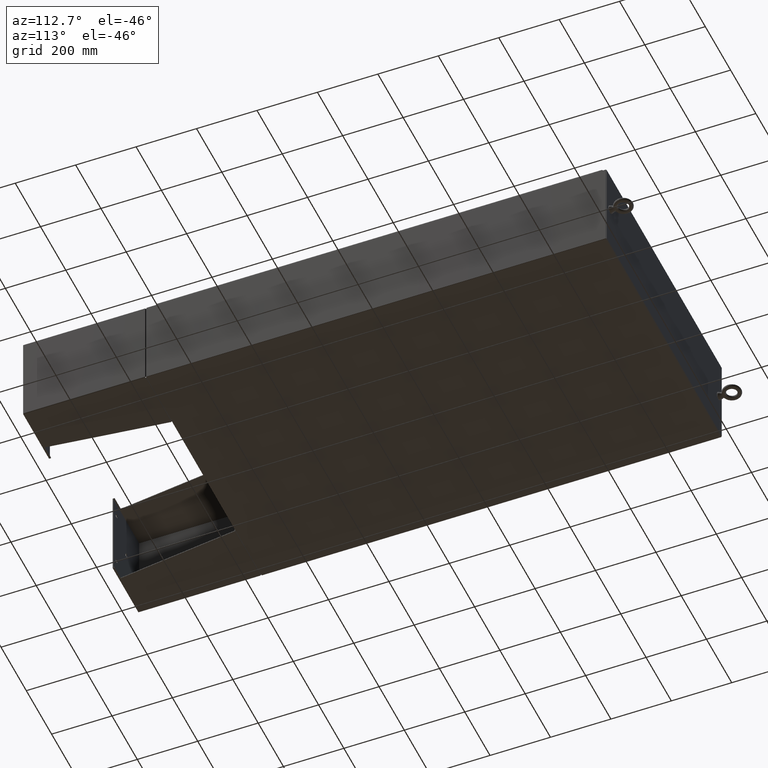
[diagram: clean part render]
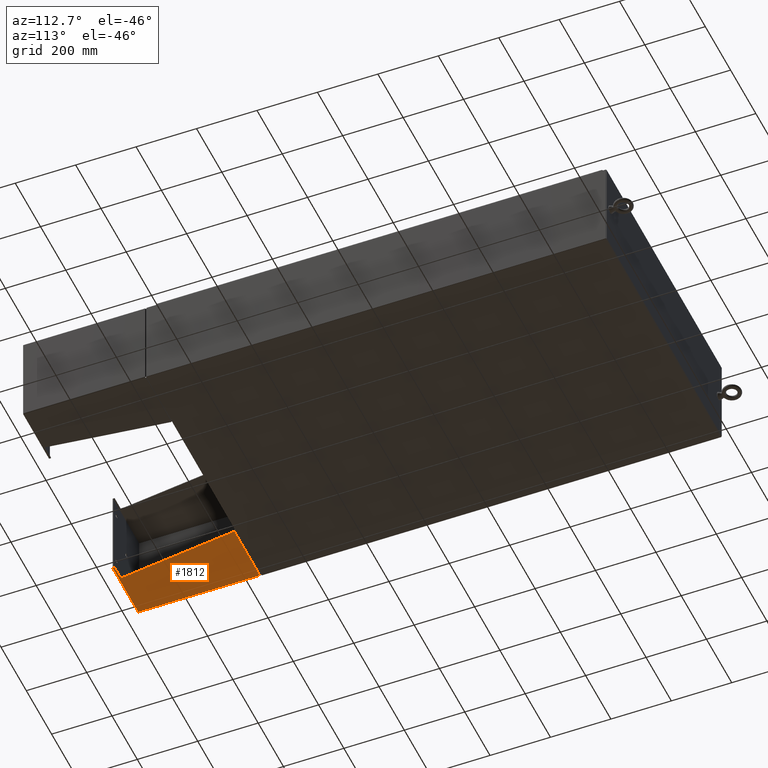
[diagram: same view with one face highlighted and labeled with its STEP entity id]
A machine part, auxiliary view. The second image highlights one B-rep face of the part: STEP entity #1812.
In plain terms, the highlighted planar face has unit normal (-0, -0, 1).
Its self-contained STEP definition (entity closure, byte-faithful):
#422 = CARTESIAN_POINT ( 'NONE',  ( 6.000000000000029300, -7.999999999999999100, 8.001000000000015400 ) ) ;
#449 = EDGE_CURVE ( 'NONE', #61689, #17574, #37320, .T. ) ;
#907 = EDGE_LOOP ( 'NONE', ( #56939, #17744, #59817, #12034, #52381, #62161 ) ) ;
#1812 = ADVANCED_FACE ( 'NONE', ( #37272 ), #31929, .F. ) ;
#2180 = CARTESIAN_POINT ( 'NONE',  ( 6.000000000000029300, -7.999999999999999100, 8.001000000000015400 ) ) ;
#3639 = LINE ( 'NONE', #10610, #15061 ) ;
#4213 = AXIS2_PLACEMENT_3D ( 'NONE', #42058, #60229, #55990 ) ;
#7182 = VERTEX_POINT ( 'NONE', #422 ) ;
#7525 = DIRECTION ( 'NONE',  ( -3.550958521948298200E-015, -0.0000000000000000000, -1.000000000000000000 ) ) ;
#9800 = CARTESIAN_POINT ( 'NONE',  ( 6.000000000000013300, 7.857000000000001100, 0.03900000000001561900 ) ) ;
#10610 = CARTESIAN_POINT ( 'NONE',  ( 6.000000000000022200, -7.749999999999999100, 6.052216497445950700 ) ) ;
#11625 = VECTOR ( 'NONE', #21257, 39.37007874015748100 ) ;
#12003 = LINE ( 'NONE', #45877, #61859 ) ;
#12034 = ORIENTED_EDGE ( 'NONE', *, *, #449, .F. ) ;
#12522 = VERTEX_POINT ( 'NONE', #16467 ) ;
#15061 = VECTOR ( 'NONE', #37074, 39.37007874015748100 ) ;
#16467 = CARTESIAN_POINT ( 'NONE',  ( 6.000000000000021300, -7.749999999999999100, 6.052216497445950700 ) ) ;
#17574 = VERTEX_POINT ( 'NONE', #32017 ) ;
#17744 = ORIENTED_EDGE ( 'NONE', *, *, #52362, .T. ) ;
#17836 = EDGE_CURVE ( 'NONE', #12522, #36404, #3639, .T. ) ;
#20625 = CARTESIAN_POINT ( 'NONE',  ( 5.999999999999999100, -7.999999999999999100, 0.03900000000001453000 ) ) ;
#20628 = VECTOR ( 'NONE', #41088, 39.37007874015748100 ) ;
#21257 = DIRECTION ( 'NONE',  ( -0.0000000000000000000, -1.000000000000000000, 0.0000000000000000000 ) ) ;
#23955 = CARTESIAN_POINT ( 'NONE',  ( 6.000000000000029300, -7.749999999999999100, 8.001000000000031400 ) ) ;
#24376 = DIRECTION ( 'NONE',  ( 0.0000000000000000000, 0.0000000000000000000, 1.000000000000000000 ) ) ;
#24859 = LINE ( 'NONE', #55718, #44538 ) ;
#26629 = DIRECTION ( 'NONE',  ( 0.0000000000000000000, -1.000000000000000000, 0.0000000000000000000 ) ) ;
#27009 = LINE ( 'NONE', #9800, #51220 ) ;
#29493 = VERTEX_POINT ( 'NONE', #23955 ) ;
#31929 = PLANE ( 'NONE',  #4213 ) ;
#32017 = CARTESIAN_POINT ( 'NONE',  ( 6.000000000000000900, -7.999999999999993800, 0.03899999999999890400 ) ) ;
#36404 = VERTEX_POINT ( 'NONE', #58812 ) ;
#37074 = DIRECTION ( 'NONE',  ( 4.399772607369798900E-016, 0.9922942345449394800, 0.1239038017531047700 ) ) ;
#37147 = CARTESIAN_POINT ( 'NONE',  ( 6.000000000000013300, 7.857000000000001100, 0.03900000000001453000 ) ) ;
#37272 = FACE_OUTER_BOUND ( 'NONE', #907, .T. ) ;
#37320 = LINE ( 'NONE', #20625, #11625 ) ;
#38031 = EDGE_CURVE ( 'NONE', #61689, #36404, #27009, .T. ) ;
#41088 = DIRECTION ( 'NONE',  ( -3.550958521948298200E-015, 0.0000000000000000000, -1.000000000000000000 ) ) ;
#42058 = CARTESIAN_POINT ( 'NONE',  ( 6.000000000000029300, -7.999999999999999100, 8.001000000000015400 ) ) ;
#44538 = VECTOR ( 'NONE', #7525, 39.37007874015748100 ) ;
#45817 = EDGE_CURVE ( 'NONE', #7182, #17574, #57649, .T. ) ;
#45877 = CARTESIAN_POINT ( 'NONE',  ( 6.000000000000029300, -7.999999999999999100, 8.001000000000015400 ) ) ;
#48851 = EDGE_CURVE ( 'NONE', #29493, #12522, #24859, .T. ) ;
#51220 = VECTOR ( 'NONE', #24376, 39.37007874015748100 ) ;
#52362 = EDGE_CURVE ( 'NONE', #29493, #7182, #12003, .T. ) ;
#52381 = ORIENTED_EDGE ( 'NONE', *, *, #38031, .T. ) ;
#55718 = CARTESIAN_POINT ( 'NONE',  ( 6.000000000000029300, -7.749999999999999100, 8.001000000000015400 ) ) ;
#55990 = DIRECTION ( 'NONE',  ( 3.550958521948298200E-015, 0.0000000000000000000, 1.000000000000000000 ) ) ;
#56939 = ORIENTED_EDGE ( 'NONE', *, *, #48851, .F. ) ;
#57649 = LINE ( 'NONE', #2180, #20628 ) ;
#58812 = CARTESIAN_POINT ( 'NONE',  ( 6.000000000000013300, 7.857000000000001100, 8.001000000000013700 ) ) ;
#59817 = ORIENTED_EDGE ( 'NONE', *, *, #45817, .T. ) ;
#60229 = DIRECTION ( 'NONE',  ( -1.000000000000000000, 0.0000000000000000000, 3.550958521948298200E-015 ) ) ;
#61689 = VERTEX_POINT ( 'NONE', #37147 ) ;
#61859 = VECTOR ( 'NONE', #26629, 39.37007874015748100 ) ;
#62161 = ORIENTED_EDGE ( 'NONE', *, *, #17836, .F. ) ;